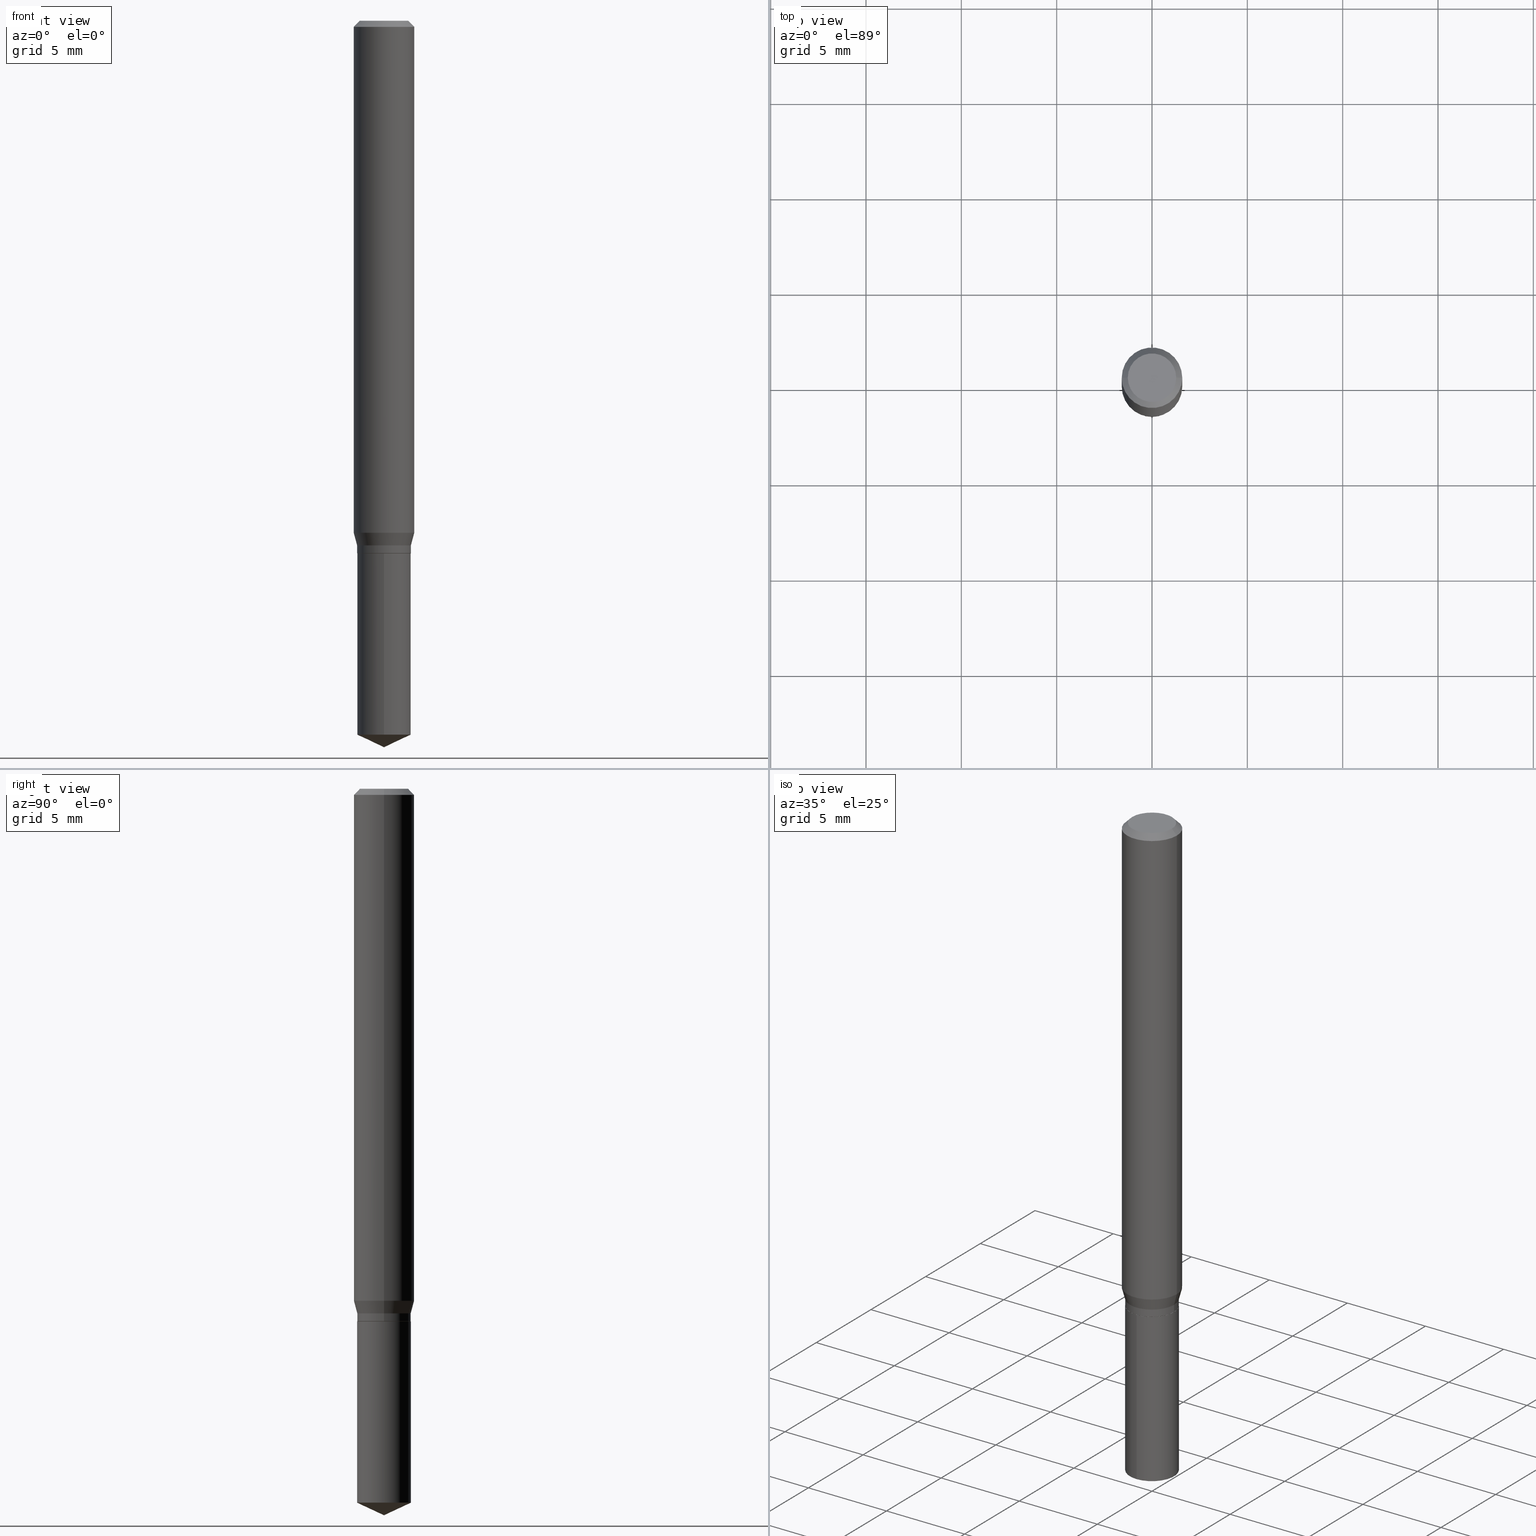
[diagram: canonical four-view strip — front | top / right | iso, engineering-drawing reading convention]
A machine part, canonical four-view strip (front | top / right | iso — engineering-drawing reading convention). The complete STEP part file that produces these views, byte-faithful:
ISO-10303-21;
HEADER;
FILE_DESCRIPTION (( 'STEP AP203' ),
    '1' );
FILE_NAME ('07220.STEP',
    '2024-04-23T20:03:48',
    ( '' ),
    ( '' ),
    'SwSTEP 2.0',
    'SolidWorks 2023',
    '' );
FILE_SCHEMA (( 'CONFIG_CONTROL_DESIGN' ));
ENDSEC;

DATA;
#1 = CARTESIAN_POINT ( 'NONE',  ( 0.05500000000000000028, -4.224692420000205086E-15, -1.100000000000000089 ) ) ;
#2 = ORIENTED_EDGE ( 'NONE', *, *, #60, .T. ) ;
#3 = DIRECTION ( 'NONE',  ( -2.445468806185136597E-29, 3.491481338843145583E-15, 1.000000000000000000 ) ) ;
#4 = EDGE_LOOP ( 'NONE', ( #372, #337 ) ) ;
#5 =( NAMED_UNIT ( * ) PLANE_ANGLE_UNIT ( ) SI_UNIT ( $, .RADIAN. ) );
#6 = AXIS2_PLACEMENT_3D ( 'NONE', #24, #292, #475 ) ;
#7 = AXIS2_PLACEMENT_3D ( 'NONE', #381, #197, #278 ) ;
#8 = EDGE_LOOP ( 'NONE', ( #112, #46, #123, #385 ) ) ;
#9 = VERTEX_POINT ( 'NONE', #11 ) ;
#10 = LINE ( 'NONE', #318, #384 ) ;
#11 = CARTESIAN_POINT ( 'NONE',  ( 0.05550000000000000072, -4.169876162980368296E-15, -1.083300000000000152 ) ) ;
#12 = PLANE ( 'NONE',  #274 ) ;
#13 = VERTEX_POINT ( 'NONE', #118 ) ;
#14 = CC_DESIGN_APPROVAL ( #310, ( #90 ) ) ;
#15 = EDGE_CURVE ( 'NONE', #298, #157, #272, .T. ) ;
#16 = DIRECTION ( 'NONE',  ( -2.438088387897960049E-29, 3.491481338843145188E-15, 1.000000000000000000 ) ) ;
#17 = VERTEX_POINT ( 'NONE', #44 ) ;
#18 = DIRECTION ( 'NONE',  ( -2.445399690415121530E-29, 3.491580316559632610E-15, 1.000000000000000000 ) ) ;
#19 = CARTESIAN_POINT ( 'NONE',  ( -0.05550000000000000072, -3.416251514866553892E-15, -1.083300000000000152 ) ) ;
#20 = ADVANCED_FACE ( 'NONE', ( #82 ), #350, .T. ) ;
#21 = CALENDAR_DATE ( 2024, 23, 4 ) ;
#22 = LINE ( 'NONE', #246, #226 ) ;
#23 = PERSON_AND_ORGANIZATION ( #434, #36 ) ;
#24 = CARTESIAN_POINT ( 'NONE',  ( 2.690015686803650369E-29, -3.840629472727460101E-15, -1.100000000000000089 ) ) ;
#25 = ADVANCED_FACE ( 'NONE', ( #231 ), #405, .T. ) ;
#26 = COORDINATED_UNIVERSAL_TIME_OFFSET ( 5, 0, .BEHIND. ) ;
#27 = CARTESIAN_POINT ( 'NONE',  ( 0.04999999999999999584, -4.077247707424184212E-16, -1.592040838888913461E-18 ) ) ;
#28 = VECTOR ( 'NONE', #284, 39.37007874015748143 ) ;
#29 = CONICAL_SURFACE ( 'NONE', #242, 0.05550000000000000072, 0.2617993877991506291 ) ;
#30 = DIRECTION ( 'NONE',  ( 1.000000000000000000, -6.982962677686271444E-15, 0.000000000000000000 ) ) ;
#31 = LINE ( 'NONE', #254, #114 ) ;
#32 = EDGE_CURVE ( 'NONE', #17, #143, #374, .T. ) ;
#33 = FACE_OUTER_BOUND ( 'NONE', #8, .T. ) ;
#34 = EDGE_LOOP ( 'NONE', ( #454, #315, #164, #332 ) ) ;
#35 = AXIS2_PLACEMENT_3D ( 'NONE', #436, #481, #95 ) ;
#36 = ORGANIZATION ( 'UNSPECIFIED', 'UNSPECIFIED', '' ) ;
#37 = CYLINDRICAL_SURFACE ( 'NONE', #360, 0.06250000000000006939 ) ;
#38 = FACE_OUTER_BOUND ( 'NONE', #40, .T. ) ;
#39 = ORIENTED_EDGE ( 'NONE', *, *, #214, .F. ) ;
#40 = EDGE_LOOP ( 'NONE', ( #206, #410, #490, #459 ) ) ;
#41 = CARTESIAN_POINT ( 'NONE',  ( 2.690015686803650369E-29, -3.840629472727460101E-15, -1.100000000000000089 ) ) ;
#42 = AXIS2_PLACEMENT_3D ( 'NONE', #433, #59, #439 ) ;
#43 = CIRCLE ( 'NONE', #105, 0.06250000000000000000 ) ;
#44 = CARTESIAN_POINT ( 'NONE',  ( -0.04999999999999999584, 3.709698922520826725E-16, -1.592040838894077649E-18 ) ) ;
#45 = PRODUCT_DEFINITION_SHAPE ( 'NONE', 'NONE',  #117 ) ;
#46 = ORIENTED_EDGE ( 'NONE', *, *, #113, .T. ) ;
#47 = FACE_OUTER_BOUND ( 'NONE', #483, .T. ) ;
#48 = DIRECTION ( 'NONE',  ( 1.000000000000000000, -6.982962677686265922E-15, 4.875957971899673662E-29 ) ) ;
#49 = DIRECTION ( 'NONE',  ( -6.982962677686266711E-15, -1.000000000000000000, 3.520397390770481874E-15 ) ) ;
#50 = ORIENTED_EDGE ( 'NONE', *, *, #60, .F. ) ;
#51 = AXIS2_PLACEMENT_3D ( 'NONE', #328, #56, #244 ) ;
#52 = LOCAL_TIME ( 16, 3, 48.00000000000000000, #359 ) ;
#53 = CARTESIAN_POINT ( 'NONE',  ( 3.943512183468824296E-16, 0.05549999999999616351, -1.100000000000000089 ) ) ;
#54 = CARTESIAN_POINT ( 'NONE',  ( -0.05500000000000000028, -3.447181740885293846E-15, -1.100000000000000089 ) ) ;
#55 = DATE_AND_TIME ( #241, #424 ) ;
#56 = DIRECTION ( 'NONE',  ( -2.445468806185136597E-29, 3.491481338843145583E-15, 1.000000000000000000 ) ) ;
#57 = CIRCLE ( 'NONE', #345, 0.05550000000000000072 ) ;
#58 = PERSON_AND_ORGANIZATION ( #434, #36 ) ;
#59 = DIRECTION ( 'NONE',  ( -2.445468806185136597E-29, 3.491481338843145583E-15, 1.000000000000000000 ) ) ;
#60 = EDGE_CURVE ( 'NONE', #448, #70, #349, .T. ) ;
#61 = CARTESIAN_POINT ( 'NONE',  ( 3.893286209682126177E-47, -5.558580879666067980E-33, -1.592040838891559689E-18 ) ) ;
#62 = PLANE ( 'NONE',  #487 ) ;
#63 = AXIS2_PLACEMENT_3D ( 'NONE', #330, #336, #30 ) ;
#64 = AXIS2_PLACEMENT_3D ( 'NONE', #267, #121, #195 ) ;
#65 = DIRECTION ( 'NONE',  ( 1.000000000000000000, -6.982962677686266711E-15, 4.876176775795935793E-29 ) ) ;
#66 = DIRECTION ( 'NONE',  ( -2.445399690415121530E-29, 3.491580316559632610E-15, 1.000000000000000000 ) ) ;
#67 = ORIENTED_EDGE ( 'NONE', *, *, #187, .F. ) ;
#68 = MANIFOLD_SOLID_BREP ( 'Body-Move/Copy2[1]', #423 ) ;
#69 = DIRECTION ( 'NONE',  ( 1.000000000000000000, -6.982962677686264344E-15, 0.000000000000000000 ) ) ;
#70 = VERTEX_POINT ( 'NONE', #468 ) ;
#71 = CIRCLE ( 'NONE', #137, 0.06250000000000012490 ) ;
#72 = AXIS2_PLACEMENT_3D ( 'NONE', #488, #146, #333 ) ;
#73 = DIRECTION ( 'NONE',  ( -2.445468806185136597E-29, 3.491481338843145583E-15, 1.000000000000000000 ) ) ;
#74 = EDGE_CURVE ( 'NONE', #182, #380, #471, .T. ) ;
#75 = DIRECTION ( 'NONE',  ( -2.445399690415121530E-29, 3.491580316559632610E-15, 1.000000000000000000 ) ) ;
#76 = ORIENTED_EDGE ( 'NONE', *, *, #81, .F. ) ;
#77 =( LENGTH_UNIT ( ) NAMED_UNIT ( * ) SI_UNIT ( $, .METRE. ) );
#78 = DIRECTION ( 'NONE',  ( 1.000000000000000000, -6.982962677686266711E-15, 0.000000000000000000 ) ) ;
#79 = CARTESIAN_POINT ( 'NONE',  ( -0.05500000000000000028, -3.449830968059405047E-15, -1.100000000000000089 ) ) ;
#80 = AXIS2_PLACEMENT_3D ( 'NONE', #181, #331, #302 ) ;
#81 = EDGE_CURVE ( 'NONE', #375, #9, #22, .T. ) ;
#82 = FACE_OUTER_BOUND ( 'NONE', #225, .T. ) ;
#83 = CARTESIAN_POINT ( 'NONE',  ( 3.056836007731440977E-31, -4.364351673553961068E-17, -0.01250000000000008223 ) ) ;
#84 = CC_DESIGN_PERSON_AND_ORGANIZATION_ASSIGNMENT ( #174, #431, ( #90 ) ) ;
#85 = CARTESIAN_POINT ( 'NONE',  ( 2.690015686803650369E-29, -3.840629472727460101E-15, -1.100000000000000089 ) ) ;
#86 = EDGE_LOOP ( 'NONE', ( #88, #317, #260, #301 ) ) ;
#87 = SECURITY_CLASSIFICATION_LEVEL ( 'unclassified' ) ;
#88 = ORIENTED_EDGE ( 'NONE', *, *, #210, .F. ) ;
#89 = VECTOR ( 'NONE', #319, 39.37007874015748143 ) ;
#90 = PRODUCT_DEFINITION_FORMATION_WITH_SPECIFIED_SOURCE ( 'ANY', '', #294, .NOT_KNOWN. ) ;
#91 = CARTESIAN_POINT ( 'NONE',  ( -3.875544286115608747E-16, -0.05550000000000384487, -1.099999999999999867 ) ) ;
#92 = PERSON_AND_ORGANIZATION ( #434, #36 ) ;
#93 = CARTESIAN_POINT ( 'NONE',  ( 3.604888435509279625E-29, -5.146899238793850819E-15, -1.474119924972397522 ) ) ;
#94 = APPROVAL_ROLE ( '' ) ;
#95 = DIRECTION ( 'NONE',  ( -1.000000000000000000, 6.982962677686266711E-15, 0.000000000000000000 ) ) ;
#96 = ADVANCED_FACE ( 'NONE', ( #357 ), #178, .T. ) ;
#97 = AXIS2_PLACEMENT_3D ( 'NONE', #83, #388, #271 ) ;
#98 = AXIS2_PLACEMENT_3D ( 'NONE', #159, #204, #314 ) ;
#99 = APPROVAL_ROLE ( '' ) ;
#100 = CARTESIAN_POINT ( 'NONE',  ( 3.668252923656895710E-29, -5.237152723863177100E-15, -1.500000000000000222 ) ) ;
#101 = CC_DESIGN_DATE_AND_TIME_ASSIGNMENT ( #428, #469, ( #117 ) ) ;
#102 = DIRECTION ( 'NONE',  ( -0.2588190451025219052, 5.211531920934553408E-15, 0.9659258262890679791 ) ) ;
#103 = CARTESIAN_POINT ( 'NONE',  ( 0.000000000000000000, 0.000000000000000000, 0.000000000000000000 ) ) ;
#104 = CIRCLE ( 'NONE', #398, 0.05550000000000000072 ) ;
#105 = AXIS2_PLACEMENT_3D ( 'NONE', #300, #447, #109 ) ;
#106 = ADVANCED_FACE ( 'NONE', ( #289 ), #395, .T. ) ;
#107 = CARTESIAN_POINT ( 'NONE',  ( 1.946643104841063088E-47, -2.779290439833033990E-33, -7.960204194457798443E-19 ) ) ;
#108 = ORIENTED_EDGE ( 'NONE', *, *, #229, .T. ) ;
#109 = DIRECTION ( 'NONE',  ( 1.000000000000000000, -6.982962677686266711E-15, 0.000000000000000000 ) ) ;
#110 = ORIENTED_EDGE ( 'NONE', *, *, #126, .F. ) ;
#111 = DIRECTION ( 'NONE',  ( 1.000000000000000000, -6.982962677686266711E-15, 4.876176775795935793E-29 ) ) ;
#112 = ORIENTED_EDGE ( 'NONE', *, *, #223, .T. ) ;
#113 = EDGE_CURVE ( 'NONE', #13, #466, #139, .T. ) ;
#114 = VECTOR ( 'NONE', #189, 39.37007874015748143 ) ;
#115 = DIRECTION ( 'NONE',  ( -6.982962677686266711E-15, -1.000000000000000000, 2.461124318616453201E-15 ) ) ;
#116 = EDGE_LOOP ( 'NONE', ( #194, #279, #238, #450 ) ) ;
#117 = PRODUCT_DEFINITION ( 'UNKNOWN', '', #90, #236 ) ;
#118 = CARTESIAN_POINT ( 'NONE',  ( 3.943512183468915508E-16, 0.05549999999999484512, -1.474119924972397966 ) ) ;
#119 = DIRECTION ( 'NONE',  ( -2.445399690415121530E-29, 3.491580316559632610E-15, 1.000000000000000000 ) ) ;
#120 = VERTEX_POINT ( 'NONE', #282 ) ;
#121 = DIRECTION ( 'NONE',  ( 2.445399690415121250E-29, -3.491580316559632610E-15, -1.000000000000000000 ) ) ;
#122 = EDGE_LOOP ( 'NONE', ( #342, #369 ) ) ;
#123 = ORIENTED_EDGE ( 'NONE', *, *, #180, .F. ) ;
#124 = APPROVAL_ROLE ( '' ) ;
#125 = EDGE_LOOP ( 'NONE', ( #419, #348, #383, #378 ) ) ;
#126 = EDGE_CURVE ( 'NONE', #196, #9, #430, .T. ) ;
#127 = CALENDAR_DATE ( 2024, 23, 4 ) ;
#128 = DIRECTION ( 'NONE',  ( -2.445468806185136597E-29, 3.491481338843145583E-15, 1.000000000000000000 ) ) ;
#129 = CIRCLE ( 'NONE', #266, 0.05550000000000000072 ) ;
#130 = PERSON_AND_ORGANIZATION_ROLE ( 'classification_officer' ) ;
#131 = DIRECTION ( 'NONE',  ( 0.7071067811865453523, -7.319954787623248157E-15, -0.7071067811865496822 ) ) ;
#132 = EDGE_CURVE ( 'NONE', #344, #298, #173, .T. ) ;
#133 = SHAPE_DEFINITION_REPRESENTATION ( #45, #235 ) ;
#134 = DIRECTION ( 'NONE',  ( 6.439704144417020098E-15, 0.9063077870366508249, 0.4226182617406974984 ) ) ;
#135 = PERSON_AND_ORGANIZATION_ROLE ( 'creator' ) ;
#136 = CARTESIAN_POINT ( 'NONE',  ( -0.06250000000000000000, -1.423287065576251094E-15, -0.01250000000000008223 ) ) ;
#137 = AXIS2_PLACEMENT_3D ( 'NONE', #169, #128, #321 ) ;
#138 = CIRCLE ( 'NONE', #257, 0.06250000000000012490 ) ;
#139 = LINE ( 'NONE', #53, #28 ) ;
#140 = FACE_OUTER_BOUND ( 'NONE', #125, .T. ) ;
#141 = EDGE_CURVE ( 'NONE', #380, #375, #470, .T. ) ;
#142 = CARTESIAN_POINT ( 'NONE',  ( -0.05550000000000000072, 3.943512183468556083E-16, -2.730008975091472902E-30 ) ) ;
#143 = VERTEX_POINT ( 'NONE', #27 ) ;
#144 = CC_DESIGN_PERSON_AND_ORGANIZATION_ASSIGNMENT ( #362, #435, ( #90 ) ) ;
#145 = VECTOR ( 'NONE', #275, 39.37007874015748854 ) ;
#146 = DIRECTION ( 'NONE',  ( -2.445468806185136597E-29, 3.491481338843145583E-15, 1.000000000000000000 ) ) ;
#147 = ORIENTED_EDGE ( 'NONE', *, *, #291, .T. ) ;
#148 = EDGE_CURVE ( 'NONE', #70, #120, #253, .T. ) ;
#149 = DIRECTION ( 'NONE',  ( 1.000000000000000000, -6.982962677686271444E-15, 0.000000000000000000 ) ) ;
#150 = UNCERTAINTY_MEASURE_WITH_UNIT (LENGTH_MEASURE( 1.000000000000000082E-05 ), #418, 'distance_accuracy_value', 'NONE');
#151 = CYLINDRICAL_SURFACE ( 'NONE', #358, 0.05550000000000000072 ) ;
#152 = EDGE_LOOP ( 'NONE', ( #50, #309, #426 ) ) ;
#153 = APPROVAL_PERSON_ORGANIZATION ( #58, #192, #99 ) ;
#154 = CARTESIAN_POINT ( 'NONE',  ( 3.943512183468916494E-16, 0.05549999999999616351, -1.100000000000000089 ) ) ;
#155 = ORIENTED_EDGE ( 'NONE', *, *, #299, .F. ) ;
#156 = APPLICATION_PROTOCOL_DEFINITION ( 'international standard', 'config_control_design', 1994, #191 ) ;
#157 = VERTEX_POINT ( 'NONE', #136 ) ;
#158 = DIMENSIONAL_EXPONENTS ( 1.000000000000000000, 0.000000000000000000, 0.000000000000000000, 0.000000000000000000, 0.000000000000000000, 0.000000000000000000, 0.000000000000000000 ) ;
#159 = CARTESIAN_POINT ( 'NONE',  ( 2.690015686803650369E-29, -3.840629472727460101E-15, -1.100000000000000089 ) ) ;
#160 = ORIENTED_EDGE ( 'NONE', *, *, #148, .T. ) ;
#161 = AXIS2_PLACEMENT_3D ( 'NONE', #361, #286, #209 ) ;
#162 = DIRECTION ( 'NONE',  ( -6.982962677686266711E-15, -1.000000000000000000, 2.461124318616453201E-15 ) ) ;
#163 = AXIS2_PLACEMENT_3D ( 'NONE', #85, #75, #162 ) ;
#164 = ORIENTED_EDGE ( 'NONE', *, *, #382, .F. ) ;
#165 = DIRECTION ( 'NONE',  ( -2.445468806185136597E-29, 3.491481338843145583E-15, 1.000000000000000000 ) ) ;
#166 = EDGE_CURVE ( 'NONE', #303, #344, #71, .T. ) ;
#167 = CARTESIAN_POINT ( 'NONE',  ( 3.668099535622682155E-29, -5.237370474839448718E-15, -1.500000000000000222 ) ) ;
#168 = DATE_TIME_ROLE ( 'classification_date' ) ;
#169 = CARTESIAN_POINT ( 'NONE',  ( 2.585290060909303846E-29, -3.691109034117089831E-15, -1.057175644347017718 ) ) ;
#170 = LINE ( 'NONE', #100, #213 ) ;
#171 = AXIS2_PLACEMENT_3D ( 'NONE', #341, #227, #219 ) ;
#172 = LOCAL_TIME ( 16, 3, 48.00000000000000000, #215 ) ;
#173 = LINE ( 'NONE', #440, #316 ) ;
#174 = PERSON_AND_ORGANIZATION ( #434, #36 ) ;
#175 = DIRECTION ( 'NONE',  ( 1.000000000000000000, -6.982962677686271444E-15, 0.000000000000000000 ) ) ;
#176 = DATE_AND_TIME ( #127, #172 ) ;
#177 = FACE_OUTER_BOUND ( 'NONE', #34, .T. ) ;
#178 = CONICAL_SURFACE ( 'NONE', #35, 0.06250000000000000000, 0.7853981633974452814 ) ;
#179 = DIRECTION ( 'NONE',  ( -2.445468806185136877E-29, 3.491481338843145188E-15, 1.000000000000000000 ) ) ;
#180 = EDGE_CURVE ( 'NONE', #120, #466, #232, .T. ) ;
#181 = CARTESIAN_POINT ( 'NONE',  ( -9.260740279983036507E-28, 1.322265303911854087E-13, 37.87007874015748143 ) ) ;
#182 = VERTEX_POINT ( 'NONE', #54 ) ;
#183 = DIRECTION ( 'NONE',  ( -2.445468806185136597E-29, 3.491481338843145583E-15, 1.000000000000000000 ) ) ;
#184 = ORIENTED_EDGE ( 'NONE', *, *, #252, .T. ) ;
#185 = CIRCLE ( 'NONE', #203, 0.05550000000000000072 ) ;
#186 = CONICAL_SURFACE ( 'NONE', #63, 0.05550000000000000072, 0.2617993877991506291 ) ;
#187 = EDGE_CURVE ( 'NONE', #13, #70, #255, .T. ) ;
#188 = CIRCLE ( 'NONE', #489, 0.05550000000000000072 ) ;
#189 = DIRECTION ( 'NONE',  ( -0.7071067811865453523, 2.468850131082234184E-15, -0.7071067811865496822 ) ) ;
#190 = ORIENTED_EDGE ( 'NONE', *, *, #113, .F. ) ;
#191 = APPLICATION_CONTEXT ( 'configuration controlled 3d designs of mechanical parts and assemblies' ) ;
#192 = APPROVAL ( #474, 'UNSPECIFIED' ) ;
#193 = DIRECTION ( 'NONE',  ( -2.445468806185136597E-29, 3.491481338843145583E-15, 1.000000000000000000 ) ) ;
#194 = ORIENTED_EDGE ( 'NONE', *, *, #252, .F. ) ;
#195 = DIRECTION ( 'NONE',  ( 6.982962677686265922E-15, 1.000000000000000000, -3.491580316559632610E-15 ) ) ;
#196 = VERTEX_POINT ( 'NONE', #19 ) ;
#197 = DIRECTION ( 'NONE',  ( 0.000000000000000000, 0.000000000000000000, 1.000000000000000000 ) ) ;
#198 = DIRECTION ( 'NONE',  ( -2.445468806185136597E-29, 3.491481338843145583E-15, 1.000000000000000000 ) ) ;
#199 = EDGE_LOOP ( 'NONE', ( #39, #2, #67 ) ) ;
#200 = APPLICATION_CONTEXT ( 'configuration controlled 3d designs of mechanical parts and assemblies' ) ;
#201 = PERSON_AND_ORGANIZATION ( #434, #36 ) ;
#202 = ORIENTED_EDGE ( 'NONE', *, *, #81, .T. ) ;
#203 = AXIS2_PLACEMENT_3D ( 'NONE', #363, #403, #175 ) ;
#204 = DIRECTION ( 'NONE',  ( -2.445468806185136597E-29, 3.491481338843145583E-15, 1.000000000000000000 ) ) ;
#205 = LOCAL_TIME ( 16, 3, 48.00000000000000000, #281 ) ;
#206 = ORIENTED_EDGE ( 'NONE', *, *, #476, .F. ) ;
#207 = APPROVAL_DATE_TIME ( #176, #310 ) ;
#208 = DIRECTION ( 'NONE',  ( 0.7071067811865232589, -2.468850131082003836E-15, 0.7071067811865715536 ) ) ;
#209 = DIRECTION ( 'NONE',  ( 1.000000000000000000, -6.982962677686270655E-15, 0.000000000000000000 ) ) ;
#210 = EDGE_CURVE ( 'NONE', #196, #303, #212, .T. ) ;
#211 = APPROVAL_STATUS ( 'not_yet_approved' ) ;
#212 = LINE ( 'NONE', #355, #452 ) ;
#213 = VECTOR ( 'NONE', #134, 39.37007874015748854 ) ;
#214 = EDGE_CURVE ( 'NONE', #448, #13, #170, .T. ) ;
#215 = COORDINATED_UNIVERSAL_TIME_OFFSET ( 5, 0, .BEHIND. ) ;
#216 = DIRECTION ( 'NONE',  ( -6.982962677686266711E-15, -1.000000000000000000, 4.922248637232906401E-15 ) ) ;
#217 = DIRECTION ( 'NONE',  ( -2.445468806185136597E-29, 3.491481338843145583E-15, 1.000000000000000000 ) ) ;
#218 = EDGE_CURVE ( 'NONE', #143, #298, #325, .T. ) ;
#219 = DIRECTION ( 'NONE',  ( 1.000000000000000000, -6.982962677686267499E-15, 4.876176775795935793E-29 ) ) ;
#220 = VECTOR ( 'NONE', #249, 39.37007874015748143 ) ;
#221 = CARTESIAN_POINT ( 'NONE',  ( 2.649176357740358759E-29, -3.782321734368780305E-15, -1.083300000000000152 ) ) ;
#222 = DIRECTION ( 'NONE',  ( 0.2588190451025219052, 1.565188264969617826E-15, 0.9659258262890679791 ) ) ;
#223 = EDGE_CURVE ( 'NONE', #70, #13, #104, .T. ) ;
#224 = CARTESIAN_POINT ( 'NONE',  ( -0.05550000000000000072, -3.416251514866553892E-15, -1.099499999999999922 ) ) ;
#225 = EDGE_LOOP ( 'NONE', ( #347, #280, #407, #446 ) ) ;
#226 = VECTOR ( 'NONE', #396, 39.37007874015748143 ) ;
#227 = DIRECTION ( 'NONE',  ( -2.445468806185136597E-29, 3.491481338843145583E-15, 1.000000000000000000 ) ) ;
#228 = ORIENTED_EDGE ( 'NONE', *, *, #218, .F. ) ;
#229 = EDGE_CURVE ( 'NONE', #390, #375, #185, .T. ) ;
#230 = FACE_OUTER_BOUND ( 'NONE', #4, .T. ) ;
#231 = FACE_OUTER_BOUND ( 'NONE', #116, .T. ) ;
#232 = CIRCLE ( 'NONE', #6, 0.05550000000000000072 ) ;
#233 = PLANE ( 'NONE',  #64 ) ;
#234 = EDGE_LOOP ( 'NONE', ( #334, #184 ) ) ;
#235 = ADVANCED_BREP_SHAPE_REPRESENTATION ( '07220', ( #68, #411, #7 ), #351 ) ;
#236 = DESIGN_CONTEXT ( 'detailed design', #200, 'design' ) ;
#237 =( NAMED_UNIT ( * ) SI_UNIT ( $, .STERADIAN. ) SOLID_ANGLE_UNIT ( ) );
#238 = ORIENTED_EDGE ( 'NONE', *, *, #15, .T. ) ;
#239 = CARTESIAN_POINT ( 'NONE',  ( 2.649176357740358759E-29, -3.782321734368780305E-15, -1.083300000000000152 ) ) ;
#240 = ORIENTED_EDGE ( 'NONE', *, *, #313, .F. ) ;
#241 = CALENDAR_DATE ( 2024, 23, 4 ) ;
#242 = AXIS2_PLACEMENT_3D ( 'NONE', #239, #165, #379 ) ;
#243 = EDGE_LOOP ( 'NONE', ( #240, #108, #202, #110 ) ) ;
#244 = DIRECTION ( 'NONE',  ( 1.000000000000000000, -6.982962677686271444E-15, 0.000000000000000000 ) ) ;
#245 = PERSON_AND_ORGANIZATION ( #434, #36 ) ;
#246 = CARTESIAN_POINT ( 'NONE',  ( 0.05550000000000000072, -3.875544286115878439E-16, 2.706278110566744379E-30 ) ) ;
#247 = CALENDAR_DATE ( 2024, 23, 4 ) ;
#248 = AXIS2_PLACEMENT_3D ( 'NONE', #425, #353, #429 ) ;
#249 = DIRECTION ( 'NONE',  ( -2.445399690415121810E-29, 3.491580316559632610E-15, 1.000000000000000000 ) ) ;
#250 = APPROVAL_DATE_TIME ( #55, #192 ) ;
#251 = CARTESIAN_POINT ( 'NONE',  ( 0.06250000000000000000, -4.724246415962602840E-16, -0.01250000000000008223 ) ) ;
#252 = EDGE_CURVE ( 'NONE', #143, #17, #479, .T. ) ;
#253 = LINE ( 'NONE', #91, #220 ) ;
#254 = CARTESIAN_POINT ( 'NONE',  ( -0.06250000000000000000, 3.927916506198521080E-16, -0.01250000000000008223 ) ) ;
#255 = CIRCLE ( 'NONE', #322, 0.05550000000000000072 ) ;
#256 = ORIENTED_EDGE ( 'NONE', *, *, #382, .T. ) ;
#257 = AXIS2_PLACEMENT_3D ( 'NONE', #261, #409, #69 ) ;
#258 = ADVANCED_FACE ( 'NONE', ( #177 ), #186, .T. ) ;
#259 = DIRECTION ( 'NONE',  ( 2.438088387897960049E-29, -3.491481338843145188E-15, -1.000000000000000000 ) ) ;
#260 = ORIENTED_EDGE ( 'NONE', *, *, #354, .T. ) ;
#261 = CARTESIAN_POINT ( 'NONE',  ( 2.585290060909303846E-29, -3.691109034117089831E-15, -1.057175644347017718 ) ) ;
#262 = PRODUCT_RELATED_PRODUCT_CATEGORY ( 'detail', '', ( #294 ) ) ;
#263 = ORIENTED_EDGE ( 'NONE', *, *, #397, .T. ) ;
#264 = FACE_OUTER_BOUND ( 'NONE', #243, .T. ) ;
#265 = EDGE_LOOP ( 'NONE', ( #228, #422, #147, #417 ) ) ;
#266 = AXIS2_PLACEMENT_3D ( 'NONE', #221, #193, #149 ) ;
#267 = CARTESIAN_POINT ( 'NONE',  ( 2.690015686803650369E-29, -3.840629472727460101E-15, -1.100000000000000089 ) ) ;
#268 = EDGE_LOOP ( 'NONE', ( #256, #277, #462, #485 ) ) ;
#269 = CARTESIAN_POINT ( 'NONE',  ( 3.893286209682126177E-47, -5.558580879666067980E-33, -1.592040838891559689E-18 ) ) ;
#270 = MECHANICAL_CONTEXT ( 'NONE', #191, 'mechanical' ) ;
#271 = DIRECTION ( 'NONE',  ( -1.000000000000000000, 6.982962677686266711E-15, 0.000000000000000000 ) ) ;
#272 = CIRCLE ( 'NONE', #287, 0.06250000000000000000 ) ;
#273 = VECTOR ( 'NONE', #222, 39.37007874015748143 ) ;
#274 = AXIS2_PLACEMENT_3D ( 'NONE', #41, #16, #458 ) ;
#275 = DIRECTION ( 'NONE',  ( -0.7071067811865232589, 7.493145998870265808E-15, 0.7071067811865715536 ) ) ;
#276 = ADVANCED_FACE ( 'NONE', ( #444 ), #62, .F. ) ;
#277 = ORIENTED_EDGE ( 'NONE', *, *, #457, .T. ) ;
#278 = DIRECTION ( 'NONE',  ( 1.000000000000000000, 0.000000000000000000, 0.000000000000000000 ) ) ;
#279 = ORIENTED_EDGE ( 'NONE', *, *, #218, .T. ) ;
#280 = ORIENTED_EDGE ( 'NONE', *, *, #476, .T. ) ;
#281 = COORDINATED_UNIVERSAL_TIME_OFFSET ( 5, 0, .BEHIND. ) ;
#282 = CARTESIAN_POINT ( 'NONE',  ( -3.875544286115608747E-16, -0.05550000000000384487, -1.099999999999999867 ) ) ;
#283 = EDGE_CURVE ( 'NONE', #9, #196, #129, .T. ) ;
#284 = DIRECTION ( 'NONE',  ( -2.445399690415121810E-29, 3.491580316559632610E-15, 1.000000000000000000 ) ) ;
#285 = CC_DESIGN_PERSON_AND_ORGANIZATION_ASSIGNMENT ( #201, #464, ( #294 ) ) ;
#286 = DIRECTION ( 'NONE',  ( -2.445468806185136597E-29, 3.491481338843145583E-15, 1.000000000000000000 ) ) ;
#287 = AXIS2_PLACEMENT_3D ( 'NONE', #393, #312, #78 ) ;
#288 = VECTOR ( 'NONE', #208, 39.37007874015748854 ) ;
#289 = FACE_OUTER_BOUND ( 'NONE', #305, .T. ) ;
#290 = SECURITY_CLASSIFICATION ( '', '', #87 ) ;
#291 = EDGE_CURVE ( 'NONE', #17, #157, #31, .T. ) ;
#292 = DIRECTION ( 'NONE',  ( -2.445399690415121530E-29, 3.491580316559632610E-15, 1.000000000000000000 ) ) ;
#293 = DIRECTION ( 'NONE',  ( -2.445399690415121530E-29, 3.491580316559632610E-15, 1.000000000000000000 ) ) ;
#294 = PRODUCT ( '07220', '07220', '', ( #270 ) ) ;
#295 = ADVANCED_FACE ( 'NONE', ( #264 ), #339, .T. ) ;
#296 = CARTESIAN_POINT ( 'NONE',  ( 0.05550000000000000072, -4.226438160669626590E-15, -1.099499999999999922 ) ) ;
#297 = CONICAL_SURFACE ( 'NONE', #80, 84.42940631927366724, 1.134464013796312898 ) ;
#298 = VERTEX_POINT ( 'NONE', #366 ) ;
#299 = EDGE_CURVE ( 'NONE', #466, #120, #57, .T. ) ;
#300 = CARTESIAN_POINT ( 'NONE',  ( 3.056836007731440977E-31, -4.364351673553961068E-17, -0.01250000000000008223 ) ) ;
#301 = ORIENTED_EDGE ( 'NONE', *, *, #166, .F. ) ;
#302 = DIRECTION ( 'NONE',  ( -6.982962677686266711E-15, -1.000000000000000000, 3.520397390770481874E-15 ) ) ;
#303 = VERTEX_POINT ( 'NONE', #367 ) ;
#304 = FACE_OUTER_BOUND ( 'NONE', #199, .T. ) ;
#305 = EDGE_LOOP ( 'NONE', ( #263, #340, #456, #76 ) ) ;
#306 = VECTOR ( 'NONE', #179, 39.37007874015748143 ) ;
#307 = CC_DESIGN_SECURITY_CLASSIFICATION ( #290, ( #90 ) ) ;
#308 = LINE ( 'NONE', #79, #145 ) ;
#309 = ORIENTED_EDGE ( 'NONE', *, *, #214, .T. ) ;
#310 = APPROVAL ( #211, 'UNSPECIFIED' ) ;
#311 = DIRECTION ( 'NONE',  ( -2.445468806185136877E-29, 3.491481338843145188E-15, 1.000000000000000000 ) ) ;
#312 = DIRECTION ( 'NONE',  ( -2.445468806185136597E-29, 3.491481338843145583E-15, 1.000000000000000000 ) ) ;
#313 = EDGE_CURVE ( 'NONE', #390, #196, #404, .T. ) ;
#314 = DIRECTION ( 'NONE',  ( 1.000000000000000000, -6.982962677686270655E-15, 0.000000000000000000 ) ) ;
#315 = ORIENTED_EDGE ( 'NONE', *, *, #210, .T. ) ;
#316 = VECTOR ( 'NONE', #477, 39.37007874015748143 ) ;
#317 = ORIENTED_EDGE ( 'NONE', *, *, #126, .T. ) ;
#318 = CARTESIAN_POINT ( 'NONE',  ( -0.06250000000000006939, 4.440892098500631092E-16, -3.074334431409319267E-30 ) ) ;
#319 = DIRECTION ( 'NONE',  ( -6.328713451373364645E-15, -0.9063077870366479383, 0.4226182617407037712 ) ) ;
#320 = APPLICATION_PROTOCOL_DEFINITION ( 'international standard', 'config_control_design', 1994, #200 ) ;
#321 = DIRECTION ( 'NONE',  ( 1.000000000000000000, -6.982962677686264344E-15, 0.000000000000000000 ) ) ;
#322 = AXIS2_PLACEMENT_3D ( 'NONE', #93, #432, #324 ) ;
#323 = LOCAL_TIME ( 16, 3, 48.00000000000000000, #400 ) ;
#324 = DIRECTION ( 'NONE',  ( -6.982962677686266711E-15, -1.000000000000000000, 4.922248637232906401E-15 ) ) ;
#325 = LINE ( 'NONE', #251, #413 ) ;
#326 = ADVANCED_FACE ( 'NONE', ( #304 ), #297, .T. ) ;
#327 = CALENDAR_DATE ( 2024, 23, 4 ) ;
#328 = CARTESIAN_POINT ( 'NONE',  ( 2.649176357740358759E-29, -3.782321734368780305E-15, -1.083300000000000152 ) ) ;
#329 = DATE_AND_TIME ( #21, #52 ) ;
#330 = CARTESIAN_POINT ( 'NONE',  ( 2.649176357740358759E-29, -3.782321734368780305E-15, -1.083300000000000152 ) ) ;
#331 = DIRECTION ( 'NONE',  ( -2.445399690415121530E-29, 3.491580316559632610E-15, 1.000000000000000000 ) ) ;
#332 = ORIENTED_EDGE ( 'NONE', *, *, #354, .F. ) ;
#333 = DIRECTION ( 'NONE',  ( 1.000000000000000000, -6.982962677686270655E-15, 0.000000000000000000 ) ) ;
#334 = ORIENTED_EDGE ( 'NONE', *, *, #32, .T. ) ;
#335 = CC_DESIGN_DATE_AND_TIME_ASSIGNMENT ( #394, #168, ( #290 ) ) ;
#336 = DIRECTION ( 'NONE',  ( -2.445468806185136597E-29, 3.491481338843145583E-15, 1.000000000000000000 ) ) ;
#337 = ORIENTED_EDGE ( 'NONE', *, *, #74, .F. ) ;
#338 = CONICAL_SURFACE ( 'NONE', #72, 0.05500000000000000028, 0.7853981633974141952 ) ;
#339 = CYLINDRICAL_SURFACE ( 'NONE', #171, 0.05550000000000000072 ) ;
#340 = ORIENTED_EDGE ( 'NONE', *, *, #313, .T. ) ;
#341 = CARTESIAN_POINT ( 'NONE',  ( 0.000000000000000000, 0.000000000000000000, 0.000000000000000000 ) ) ;
#342 = ORIENTED_EDGE ( 'NONE', *, *, #180, .T. ) ;
#343 = ADVANCED_FACE ( 'NONE', ( #33 ), #151, .T. ) ;
#344 = VERTEX_POINT ( 'NONE', #377 ) ;
#345 = AXIS2_PLACEMENT_3D ( 'NONE', #484, #293, #115 ) ;
#346 = CONICAL_SURFACE ( 'NONE', #463, 84.42940631927366724, 1.134464013796312898 ) ;
#347 = ORIENTED_EDGE ( 'NONE', *, *, #420, .T. ) ;
#348 = ORIENTED_EDGE ( 'NONE', *, *, #166, .T. ) ;
#349 = LINE ( 'NONE', #167, #89 ) ;
#350 = CONICAL_SURFACE ( 'NONE', #248, 0.05500000000000000028, 0.7853981633974141952 ) ;
#351 =( GEOMETRIC_REPRESENTATION_CONTEXT ( 3 ) GLOBAL_UNCERTAINTY_ASSIGNED_CONTEXT ( ( #150 ) ) GLOBAL_UNIT_ASSIGNED_CONTEXT ( ( #418, #5, #237 ) ) REPRESENTATION_CONTEXT ( 'NONE', 'WORKASPACE' ) );
#352 = CYLINDRICAL_SURFACE ( 'NONE', #163, 0.05550000000000000072 ) ;
#353 = DIRECTION ( 'NONE',  ( -2.445468806185136597E-29, 3.491481338843145583E-15, 1.000000000000000000 ) ) ;
#354 = EDGE_CURVE ( 'NONE', #9, #344, #441, .T. ) ;
#355 = CARTESIAN_POINT ( 'NONE',  ( -0.05550000000000000072, -3.387970516021924746E-15, -1.083300000000000152 ) ) ;
#356 = PERSON_AND_ORGANIZATION ( #434, #36 ) ;
#357 = FACE_OUTER_BOUND ( 'NONE', #265, .T. ) ;
#358 = AXIS2_PLACEMENT_3D ( 'NONE', #370, #66, #482 ) ;
#359 = COORDINATED_UNIVERSAL_TIME_OFFSET ( 5, 0, .BEHIND. ) ;
#360 = AXIS2_PLACEMENT_3D ( 'NONE', #449, #3, #111 ) ;
#361 = CARTESIAN_POINT ( 'NONE',  ( 2.690015686803650369E-29, -3.840629472727460101E-15, -1.100000000000000089 ) ) ;
#362 = PERSON_AND_ORGANIZATION ( #434, #36 ) ;
#363 = CARTESIAN_POINT ( 'NONE',  ( 2.688792952400557567E-29, -3.838883732058038598E-15, -1.099499999999999922 ) ) ;
#364 = DIRECTION ( 'NONE',  ( 1.000000000000000000, -6.982962677686265922E-15, 4.875957971899673662E-29 ) ) ;
#365 = AXIS2_PLACEMENT_3D ( 'NONE', #269, #198, #48 ) ;
#366 = CARTESIAN_POINT ( 'NONE',  ( 0.06250000000000000000, -4.800786840909312308E-16, -0.01250000000000008223 ) ) ;
#367 = CARTESIAN_POINT ( 'NONE',  ( -0.06250000000000012490, -3.247019824267026820E-15, -1.057175644347017718 ) ) ;
#368 = ADVANCED_FACE ( 'NONE', ( #140 ), #406, .T. ) ;
#369 = ORIENTED_EDGE ( 'NONE', *, *, #299, .T. ) ;
#370 = CARTESIAN_POINT ( 'NONE',  ( 2.690015686803650369E-29, -3.840629472727460101E-15, -1.100000000000000089 ) ) ;
#371 = ADVANCED_FACE ( 'NONE', ( #38 ), #338, .T. ) ;
#372 = ORIENTED_EDGE ( 'NONE', *, *, #420, .F. ) ;
#373 = FACE_OUTER_BOUND ( 'NONE', #268, .T. ) ;
#374 = CIRCLE ( 'NONE', #365, 0.04999999999999999584 ) ;
#375 = VERTEX_POINT ( 'NONE', #296 ) ;
#376 = EDGE_CURVE ( 'NONE', #157, #298, #43, .T. ) ;
#377 = CARTESIAN_POINT ( 'NONE',  ( 0.06250000000000012490, -4.127544201472483867E-15, -1.057175644347017718 ) ) ;
#378 = ORIENTED_EDGE ( 'NONE', *, *, #376, .F. ) ;
#379 = DIRECTION ( 'NONE',  ( 1.000000000000000000, -6.982962677686271444E-15, 0.000000000000000000 ) ) ;
#380 = VERTEX_POINT ( 'NONE', #1 ) ;
#381 = CARTESIAN_POINT ( 'NONE',  ( 0.000000000000000000, 0.000000000000000000, 0.000000000000000000 ) ) ;
#382 = EDGE_CURVE ( 'NONE', #344, #303, #138, .T. ) ;
#383 = ORIENTED_EDGE ( 'NONE', *, *, #132, .T. ) ;
#384 = VECTOR ( 'NONE', #311, 39.37007874015748143 ) ;
#385 = ORIENTED_EDGE ( 'NONE', *, *, #148, .F. ) ;
#386 = CC_DESIGN_PERSON_AND_ORGANIZATION_ASSIGNMENT ( #92, #135, ( #117 ) ) ;
#387 = FACE_OUTER_BOUND ( 'NONE', #86, .T. ) ;
#388 = DIRECTION ( 'NONE',  ( 2.445468806185136597E-29, -3.491481338843145583E-15, -1.000000000000000000 ) ) ;
#389 = CARTESIAN_POINT ( 'NONE',  ( -9.260740279983036507E-28, 1.322265303911854087E-13, 37.87007874015748143 ) ) ;
#390 = VERTEX_POINT ( 'NONE', #224 ) ;
#391 = ADVANCED_FACE ( 'NONE', ( #373 ), #37, .T. ) ;
#392 = APPROVAL_STATUS ( 'not_yet_approved' ) ;
#393 = CARTESIAN_POINT ( 'NONE',  ( 3.056836007731440977E-31, -4.364351673553961068E-17, -0.01250000000000008223 ) ) ;
#394 = DATE_AND_TIME ( #327, #205 ) ;
#395 = CYLINDRICAL_SURFACE ( 'NONE', #42, 0.05550000000000000072 ) ;
#396 = DIRECTION ( 'NONE',  ( -2.445468806185136877E-29, 3.491481338843145188E-15, 1.000000000000000000 ) ) ;
#397 = EDGE_CURVE ( 'NONE', #375, #390, #188, .T. ) ;
#398 = AXIS2_PLACEMENT_3D ( 'NONE', #401, #18, #216 ) ;
#399 = AXIS2_PLACEMENT_3D ( 'NONE', #61, #217, #364 ) ;
#400 = COORDINATED_UNIVERSAL_TIME_OFFSET ( 5, 0, .BEHIND. ) ;
#401 = CARTESIAN_POINT ( 'NONE',  ( 3.604888435509279625E-29, -5.146899238793850819E-15, -1.474119924972397522 ) ) ;
#402 = APPROVAL_DATE_TIME ( #329, #415 ) ;
#403 = DIRECTION ( 'NONE',  ( -2.445468806185136597E-29, 3.491481338843145583E-15, 1.000000000000000000 ) ) ;
#404 = LINE ( 'NONE', #142, #306 ) ;
#405 = CONICAL_SURFACE ( 'NONE', #97, 0.06250000000000000000, 0.7853981633974452814 ) ;
#406 = CYLINDRICAL_SURFACE ( 'NONE', #473, 0.06250000000000006939 ) ;
#407 = ORIENTED_EDGE ( 'NONE', *, *, #397, .F. ) ;
#408 = DIRECTION ( 'NONE',  ( -1.000000000000000000, 6.982962677686265922E-15, -4.876176775795935793E-29 ) ) ;
#409 = DIRECTION ( 'NONE',  ( -2.445468806185136597E-29, 3.491481338843145583E-15, 1.000000000000000000 ) ) ;
#410 = ORIENTED_EDGE ( 'NONE', *, *, #74, .T. ) ;
#411 = MANIFOLD_SOLID_BREP ( 'Body-Move/Copy2[2]', #437 ) ;
#412 = CARTESIAN_POINT ( 'NONE',  ( 2.688792952400557567E-29, -3.838883732058038598E-15, -1.099499999999999922 ) ) ;
#413 = VECTOR ( 'NONE', #131, 39.37007874015748143 ) ;
#414 = CC_DESIGN_APPROVAL ( #192, ( #117 ) ) ;
#415 = APPROVAL ( #392, 'UNSPECIFIED' ) ;
#416 = FACE_OUTER_BOUND ( 'NONE', #152, .T. ) ;
#417 = ORIENTED_EDGE ( 'NONE', *, *, #376, .T. ) ;
#418 =( CONVERSION_BASED_UNIT ( 'INCH', #467 ) LENGTH_UNIT ( ) NAMED_UNIT ( #158 ) );
#419 = ORIENTED_EDGE ( 'NONE', *, *, #457, .F. ) ;
#420 = EDGE_CURVE ( 'NONE', #380, #182, #453, .T. ) ;
#421 = DIRECTION ( 'NONE',  ( 1.000000000000000000, -6.982962677686271444E-15, 0.000000000000000000 ) ) ;
#422 = ORIENTED_EDGE ( 'NONE', *, *, #32, .F. ) ;
#423 = CLOSED_SHELL ( 'NONE', ( #343, #486, #326, #460, #465 ) ) ;
#424 = LOCAL_TIME ( 16, 3, 48.00000000000000000, #26 ) ;
#425 = CARTESIAN_POINT ( 'NONE',  ( 2.690015686803650369E-29, -3.840629472727460101E-15, -1.100000000000000089 ) ) ;
#426 = ORIENTED_EDGE ( 'NONE', *, *, #223, .F. ) ;
#427 = ADVANCED_FACE ( 'NONE', ( #387 ), #29, .T. ) ;
#428 = DATE_AND_TIME ( #247, #323 ) ;
#429 = DIRECTION ( 'NONE',  ( 1.000000000000000000, -6.982962677686270655E-15, 0.000000000000000000 ) ) ;
#430 = CIRCLE ( 'NONE', #51, 0.05550000000000000072 ) ;
#431 = PERSON_AND_ORGANIZATION_ROLE ( 'creator' ) ;
#432 = DIRECTION ( 'NONE',  ( -2.445399690415121530E-29, 3.491580316559632610E-15, 1.000000000000000000 ) ) ;
#433 = CARTESIAN_POINT ( 'NONE',  ( 0.000000000000000000, 0.000000000000000000, 0.000000000000000000 ) ) ;
#434 = PERSON ( 'UNSPECIFIED', 'UNSPECIFIED', 'UNSPECIFIED', ('UNSPECIFIED'), ('UNSPECIFIED'), ('UNSPECIFIED') ) ;
#435 = PERSON_AND_ORGANIZATION_ROLE ( 'design_supplier' ) ;
#436 = CARTESIAN_POINT ( 'NONE',  ( 3.056836007731440977E-31, -4.364351673553961068E-17, -0.01250000000000008223 ) ) ;
#437 = CLOSED_SHELL ( 'NONE', ( #20, #25, #391, #258, #106, #295, #427, #368, #96, #276, #472, #371 ) ) ;
#438 = APPROVAL_PERSON_ORGANIZATION ( #356, #310, #124 ) ;
#439 = DIRECTION ( 'NONE',  ( 1.000000000000000000, -6.982962677686267499E-15, 4.876176775795935793E-29 ) ) ;
#440 = CARTESIAN_POINT ( 'NONE',  ( 0.06250000000000006939, -4.364351673553921624E-16, 3.047610484872463374E-30 ) ) ;
#441 = LINE ( 'NONE', #451, #273 ) ;
#442 = ORIENTED_EDGE ( 'NONE', *, *, #187, .T. ) ;
#443 = CC_DESIGN_PERSON_AND_ORGANIZATION_ASSIGNMENT ( #23, #130, ( #290 ) ) ;
#444 = FACE_OUTER_BOUND ( 'NONE', #234, .T. ) ;
#445 = CC_DESIGN_APPROVAL ( #415, ( #290 ) ) ;
#446 = ORIENTED_EDGE ( 'NONE', *, *, #141, .F. ) ;
#447 = DIRECTION ( 'NONE',  ( -2.445468806185136597E-29, 3.491481338843145583E-15, 1.000000000000000000 ) ) ;
#448 = VERTEX_POINT ( 'NONE', #455 ) ;
#449 = CARTESIAN_POINT ( 'NONE',  ( 0.000000000000000000, 0.000000000000000000, 0.000000000000000000 ) ) ;
#450 = ORIENTED_EDGE ( 'NONE', *, *, #291, .F. ) ;
#451 = CARTESIAN_POINT ( 'NONE',  ( 0.05550000000000000072, -4.169876162980368296E-15, -1.083300000000000152 ) ) ;
#452 = VECTOR ( 'NONE', #102, 39.37007874015748143 ) ;
#453 = CIRCLE ( 'NONE', #98, 0.05500000000000000028 ) ;
#454 = ORIENTED_EDGE ( 'NONE', *, *, #283, .T. ) ;
#455 = CARTESIAN_POINT ( 'NONE',  ( 3.668099535622682715E-29, -5.237370474839449507E-15, -1.500000000000000222 ) ) ;
#456 = ORIENTED_EDGE ( 'NONE', *, *, #283, .F. ) ;
#457 = EDGE_CURVE ( 'NONE', #303, #157, #10, .T. ) ;
#458 = DIRECTION ( 'NONE',  ( 1.000000000000000000, -6.982962677686265922E-15, 4.876176775795935793E-29 ) ) ;
#459 = ORIENTED_EDGE ( 'NONE', *, *, #229, .F. ) ;
#460 = ADVANCED_FACE ( 'NONE', ( #47 ), #352, .T. ) ;
#461 = FACE_OUTER_BOUND ( 'NONE', #122, .T. ) ;
#462 = ORIENTED_EDGE ( 'NONE', *, *, #15, .F. ) ;
#463 = AXIS2_PLACEMENT_3D ( 'NONE', #389, #119, #49 ) ;
#464 = PERSON_AND_ORGANIZATION_ROLE ( 'design_owner' ) ;
#465 = ADVANCED_FACE ( 'NONE', ( #461 ), #233, .F. ) ;
#466 = VERTEX_POINT ( 'NONE', #154 ) ;
#467 = LENGTH_MEASURE_WITH_UNIT ( LENGTH_MEASURE( 0.02539999999999999897 ), #77 );
#468 = CARTESIAN_POINT ( 'NONE',  ( -3.875544286115517535E-16, -0.05550000000000514938, -1.474119924972397300 ) ) ;
#469 = DATE_TIME_ROLE ( 'creation_date' ) ;
#470 = LINE ( 'NONE', #478, #288 ) ;
#471 = CIRCLE ( 'NONE', #161, 0.05500000000000000028 ) ;
#472 = ADVANCED_FACE ( 'NONE', ( #230 ), #12, .F. ) ;
#473 = AXIS2_PLACEMENT_3D ( 'NONE', #103, #183, #65 ) ;
#474 = APPROVAL_STATUS ( 'not_yet_approved' ) ;
#475 = DIRECTION ( 'NONE',  ( -6.982962677686266711E-15, -1.000000000000000000, 2.461124318616453201E-15 ) ) ;
#476 = EDGE_CURVE ( 'NONE', #182, #390, #308, .T. ) ;
#477 = DIRECTION ( 'NONE',  ( -2.445468806185136877E-29, 3.491481338843145188E-15, 1.000000000000000000 ) ) ;
#478 = CARTESIAN_POINT ( 'NONE',  ( 0.05500000000000000028, -4.224692420000205086E-15, -1.100000000000000089 ) ) ;
#479 = CIRCLE ( 'NONE', #399, 0.04999999999999999584 ) ;
#480 = APPROVAL_PERSON_ORGANIZATION ( #245, #415, #94 ) ;
#481 = DIRECTION ( 'NONE',  ( 2.445468806185136597E-29, -3.491481338843145583E-15, -1.000000000000000000 ) ) ;
#482 = DIRECTION ( 'NONE',  ( -6.982962677686266711E-15, -1.000000000000000000, 2.461124318616453201E-15 ) ) ;
#483 = EDGE_LOOP ( 'NONE', ( #190, #442, #160, #155 ) ) ;
#484 = CARTESIAN_POINT ( 'NONE',  ( 2.690015686803650369E-29, -3.840629472727460101E-15, -1.100000000000000089 ) ) ;
#485 = ORIENTED_EDGE ( 'NONE', *, *, #132, .F. ) ;
#486 = ADVANCED_FACE ( 'NONE', ( #416 ), #346, .T. ) ;
#487 = AXIS2_PLACEMENT_3D ( 'NONE', #107, #259, #408 ) ;
#488 = CARTESIAN_POINT ( 'NONE',  ( 2.690015686803650369E-29, -3.840629472727460101E-15, -1.100000000000000089 ) ) ;
#489 = AXIS2_PLACEMENT_3D ( 'NONE', #412, #73, #421 ) ;
#490 = ORIENTED_EDGE ( 'NONE', *, *, #141, .T. ) ;
ENDSEC;
END-ISO-10303-21;
